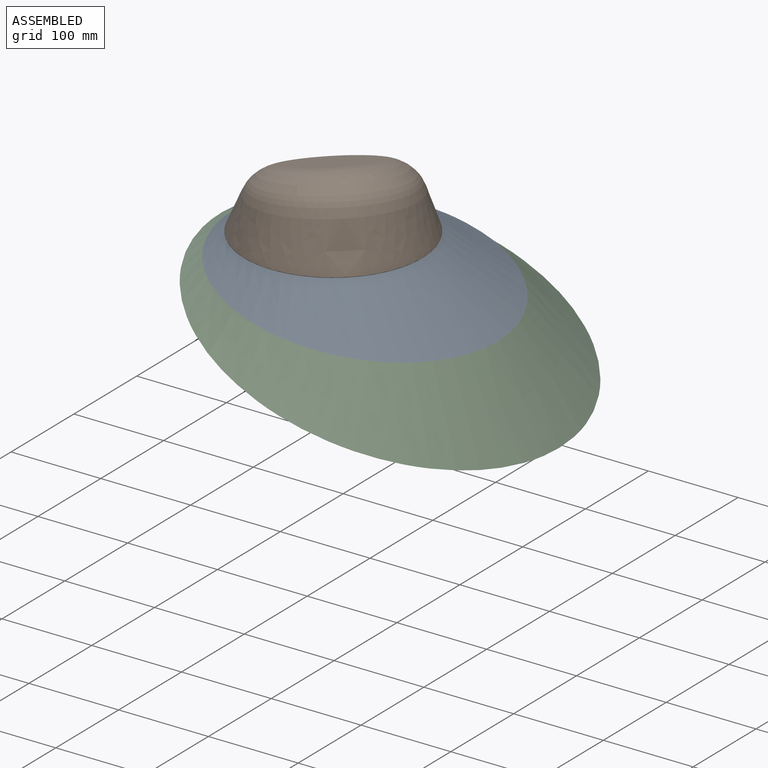
[diagram: assembled view]
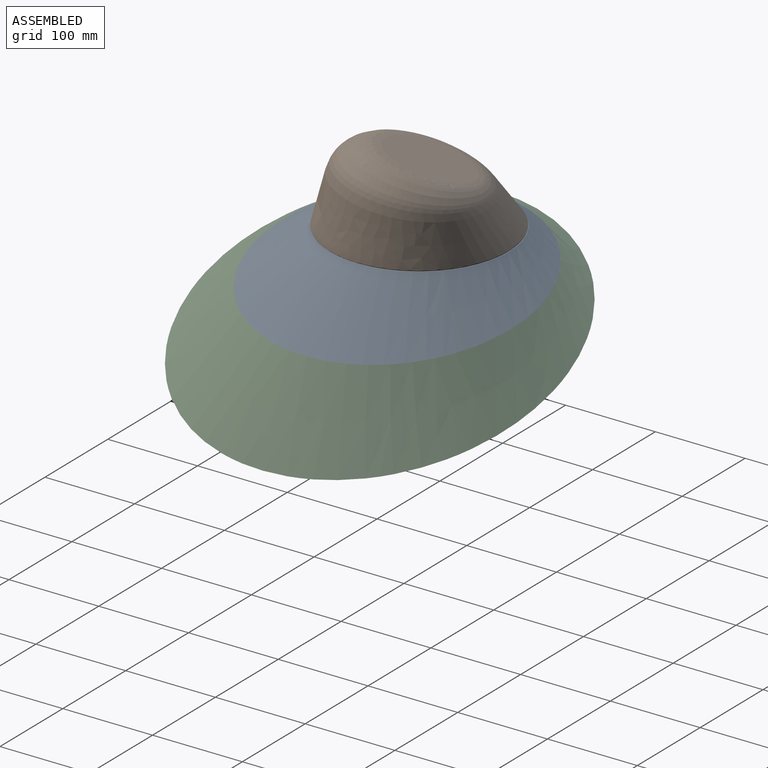
[diagram: assembled view, second angle]
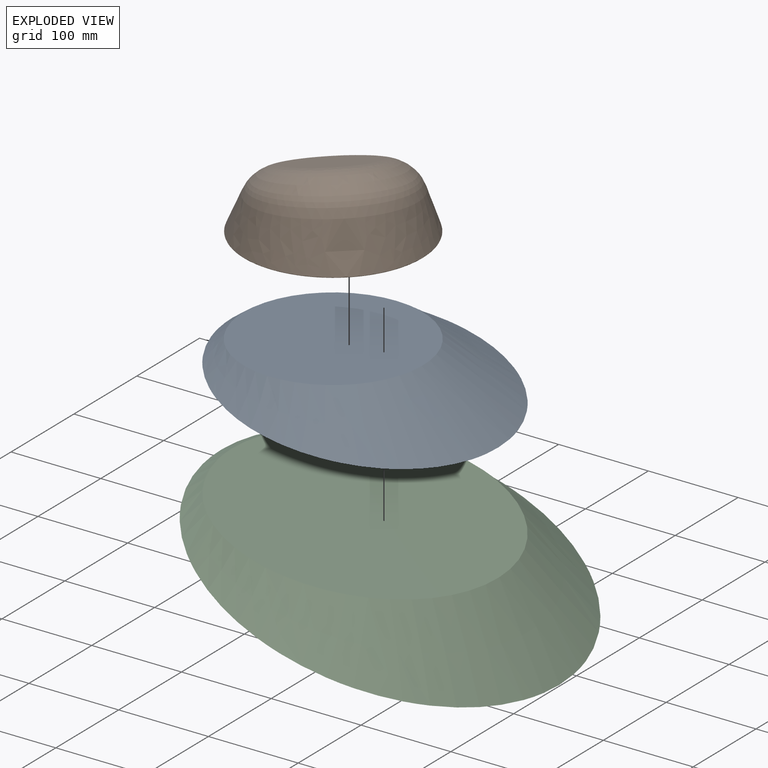
[diagram: exploded view]
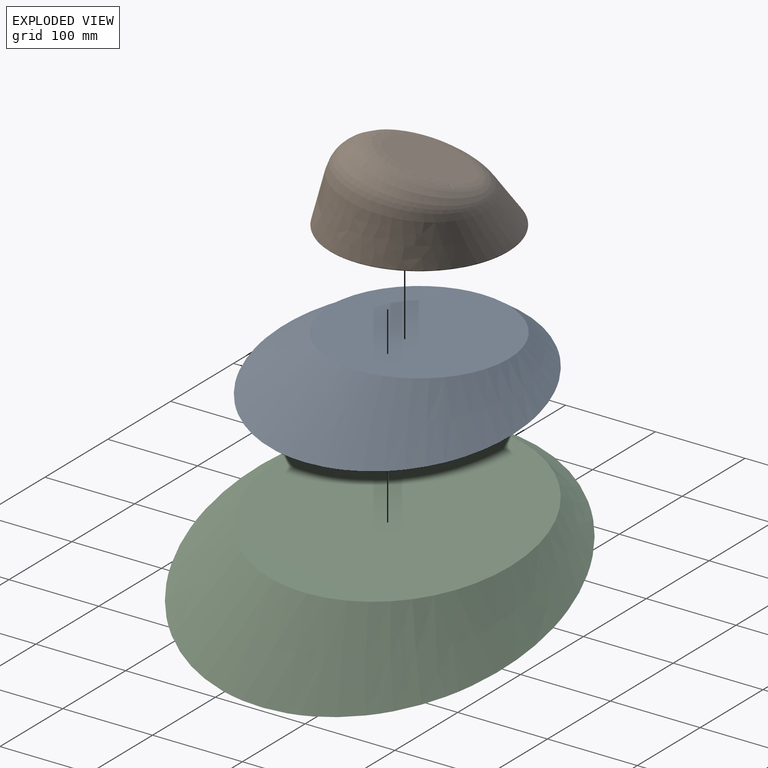
[diagram: exploded view, second angle]
ASSEMBLY  parts=3 mates=3
PART A: 3 faces, bbox 300x300x45.8 mm
  f0: plane 200x196.96mm, normal (-0.17,0,0.98), area 31416.7mm2, adj f2
  f1: plane 300x300mm, normal (0,0,-1), area 70687.4mm2, adj f2
  f2: bspline ~300x300mm, area 46325.8mm2, adj f0,f1
PART B: 5 faces, bbox 200x200x95.6 mm
  f0: plane 95.13x88.81mm, normal (-0.33,0,0.95), area 7022.4mm2, adj f3
  f1: plane 197.2x196.77mm, normal (0,0,-1), area 30479.7mm2, adj f4
  f2: bspline ~199.21x199.12mm, area 26343.3mm2, adj f3,f4
  f3: bspline ~170.3x159.98mm, area 20163.3mm2, adj f0,f2
  f4: bspline ~200.04x200.04mm, area 1220.5mm2, adj f1,f2
PART C: 3 faces, bbox 400x400x60.8 mm
  f0: plane 300x295.45mm, normal (-0.17,0,0.98), area 70687.4mm2, adj f2
  f1: plane 400x400mm, normal (0,0,-1), area 125666.4mm2, adj f2
  f2: bspline ~400x400mm, area 68894.3mm2, adj f0,f1
PLACE A rot(axis=(0,1,0.03),10deg) t=(-306.36,158.22,-1.27)mm
PLACE B rot(axis=(0,0,-1),44.9deg) t=(-341.79,158.25,33.79)mm
PLACE C rot(axis=(0,1,0),20deg) t=(-278.42,158.22,-48.37)mm fixed
MATE revolute A.f1 <-> C.f0  axis (-0.17,0,-0.98) through (-306.36,158.22,-1.27)mm
MATE planar A.f0 <-> B.f1  axis (0,0,1) through (-241.57,158.5,33.79)mm
MATE revolute B.f1 <-> A.f0  axis (0,0,-1) through (-341.57,158.03,33.79)mm
